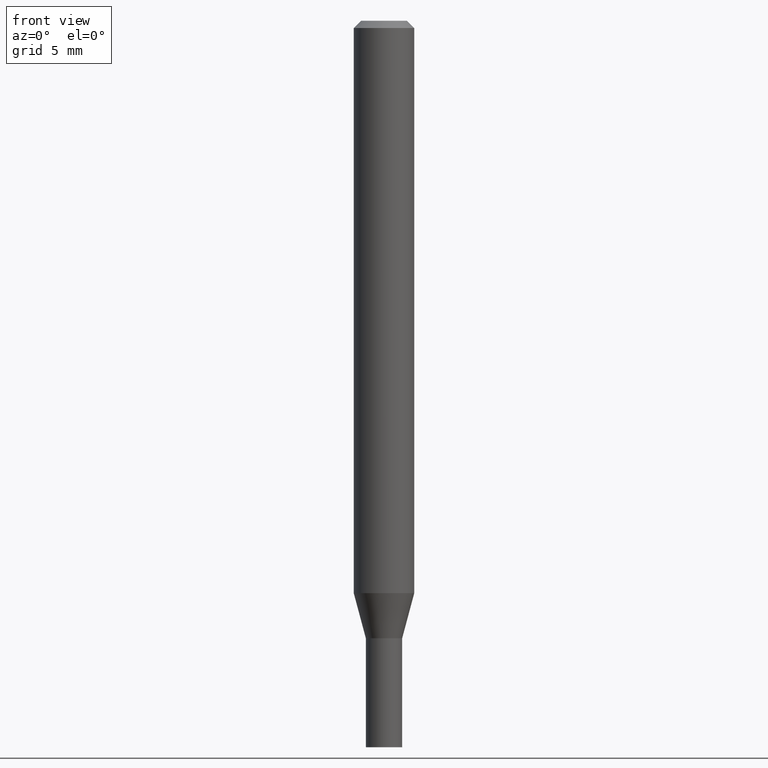
[diagram: clean part render]
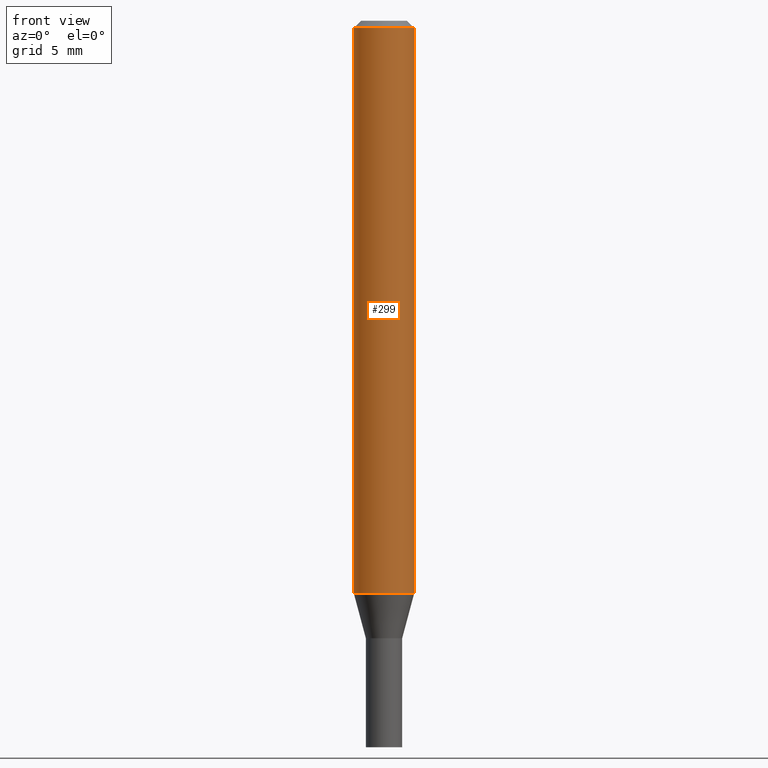
[diagram: same view with one face highlighted and labeled with its STEP entity id]
A machine part, front view. The second image highlights one B-rep face of the part: STEP entity #299.
In plain terms, the highlighted cylindrical surface (edge-blend (fillet) strip) has radius 1.5875 mm, axis along (-0, 0, 1).
Its self-contained STEP definition (entity closure, byte-faithful):
#20 = DIRECTION ( 'NONE',  ( -2.445468806185136597E-29, 3.491481338843145583E-15, 1.000000000000000000 ) ) ;
#23 = VERTEX_POINT ( 'NONE', #336 ) ;
#59 = CARTESIAN_POINT ( 'NONE',  ( -0.06250000000000000000, 4.440892098500626162E-16, -3.074334431409316114E-30 ) ) ;
#66 = CARTESIAN_POINT ( 'NONE',  ( -0.06250000000000000000, -1.645036431825749595E-15, -0.01499999999999999944 ) ) ;
#67 = AXIS2_PLACEMENT_3D ( 'NONE', #187, #404, #338 ) ;
#68 = VERTEX_POINT ( 'NONE', #116 ) ;
#73 = EDGE_CURVE ( 'NONE', #162, #68, #356, .T. ) ;
#92 = ORIENTED_EDGE ( 'NONE', *, *, #221, .F. ) ;
#108 = VECTOR ( 'NONE', #315, 39.37007874015748143 ) ;
#116 = CARTESIAN_POINT ( 'NONE',  ( 0.06250000000000000000, -4.888073874380388472E-16, -0.01499999999999999944 ) ) ;
#135 = LINE ( 'NONE', #421, #290 ) ;
#156 = AXIS2_PLACEMENT_3D ( 'NONE', #320, #20, #460 ) ;
#162 = VERTEX_POINT ( 'NONE', #66 ) ;
#170 = CARTESIAN_POINT ( 'NONE',  ( 2.889807382060853894E-29, -4.125879063268977343E-15, -1.181698729810777282 ) ) ;
#187 = CARTESIAN_POINT ( 'NONE',  ( 3.668203209277705088E-31, -5.237222008264718399E-17, -0.01499999999999999944 ) ) ;
#190 = ORIENTED_EDGE ( 'NONE', *, *, #73, .F. ) ;
#191 = ORIENTED_EDGE ( 'NONE', *, *, #389, .T. ) ;
#221 = EDGE_CURVE ( 'NONE', #23, #162, #461, .T. ) ;
#244 = DIRECTION ( 'NONE',  ( -2.445468806185136877E-29, 3.491481338843145188E-15, 1.000000000000000000 ) ) ;
#265 = AXIS2_PLACEMENT_3D ( 'NONE', #170, #304, #380 ) ;
#276 = EDGE_LOOP ( 'NONE', ( #92, #349, #191, #190 ) ) ;
#290 = VECTOR ( 'NONE', #244, 39.37007874015748143 ) ;
#293 = EDGE_CURVE ( 'NONE', #23, #388, #303, .T. ) ;
#299 = ADVANCED_FACE ( 'NONE', ( #443 ), #383, .T. ) ;
#303 = CIRCLE ( 'NONE', #265, 0.06250000000000000000 ) ;
#304 = DIRECTION ( 'NONE',  ( -2.445468806185136597E-29, 3.491481338843145583E-15, 1.000000000000000000 ) ) ;
#315 = DIRECTION ( 'NONE',  ( -2.445468806185136877E-29, 3.491481338843145188E-15, 1.000000000000000000 ) ) ;
#320 = CARTESIAN_POINT ( 'NONE',  ( 0.000000000000000000, 0.000000000000000000, 0.000000000000000000 ) ) ;
#336 = CARTESIAN_POINT ( 'NONE',  ( -0.06250000000000000000, -3.681789853418914727E-15, -1.181698729810777282 ) ) ;
#338 = DIRECTION ( 'NONE',  ( 1.000000000000000000, -6.982962677686266711E-15, 0.000000000000000000 ) ) ;
#349 = ORIENTED_EDGE ( 'NONE', *, *, #293, .T. ) ;
#356 = CIRCLE ( 'NONE', #67, 0.06250000000000000000 ) ;
#380 = DIRECTION ( 'NONE',  ( 1.000000000000000000, -6.982962677686270655E-15, 0.000000000000000000 ) ) ;
#383 = CYLINDRICAL_SURFACE ( 'NONE', #156, 0.06250000000000000000 ) ;
#388 = VERTEX_POINT ( 'NONE', #425 ) ;
#389 = EDGE_CURVE ( 'NONE', #388, #68, #135, .T. ) ;
#404 = DIRECTION ( 'NONE',  ( -2.445468806185136597E-29, 3.491481338843145583E-15, 1.000000000000000000 ) ) ;
#421 = CARTESIAN_POINT ( 'NONE',  ( 0.06250000000000000000, -4.364351673553916694E-16, 3.047610484872459871E-30 ) ) ;
#425 = CARTESIAN_POINT ( 'NONE',  ( 0.06250000000000000000, -4.562314230624369013E-15, -1.181698729810777282 ) ) ;
#443 = FACE_OUTER_BOUND ( 'NONE', #276, .T. ) ;
#460 = DIRECTION ( 'NONE',  ( 1.000000000000000000, -6.982962677686266711E-15, 4.876176775795935793E-29 ) ) ;
#461 = LINE ( 'NONE', #59, #108 ) ;